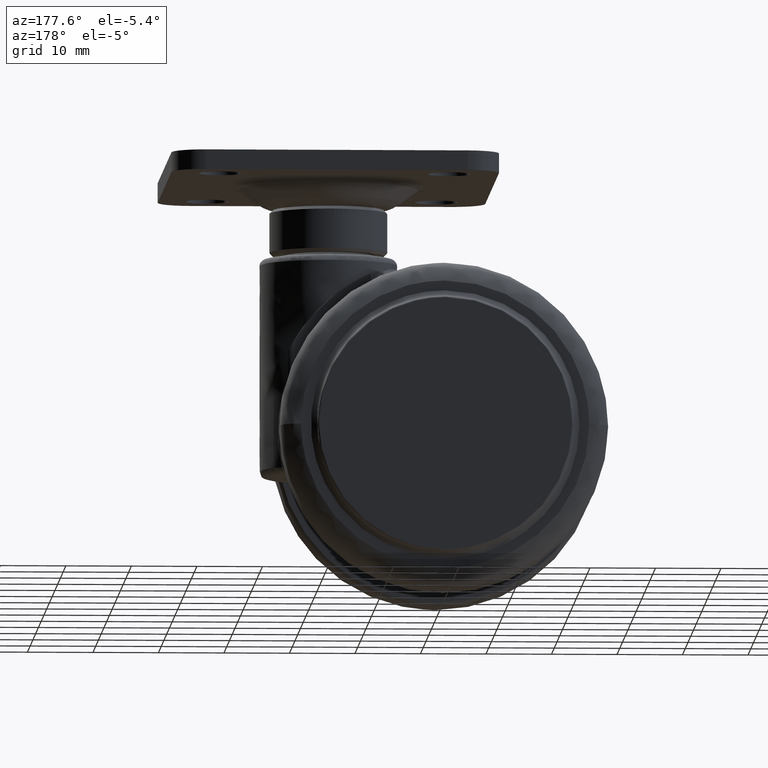
[diagram: clean part render]
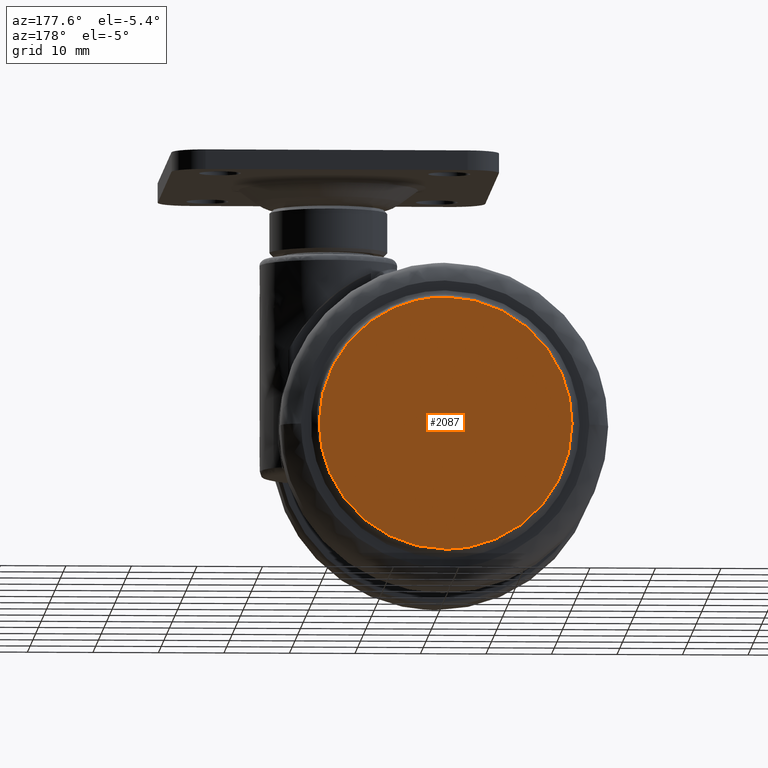
[diagram: same view with one face highlighted and labeled with its STEP entity id]
A machine part, auxiliary view. The second image highlights one B-rep face of the part: STEP entity #2087.
In plain terms, the highlighted face is a freeform B-spline surface patch.
Its self-contained STEP definition (entity closure, byte-faithful):
#1938=CARTESIAN_POINT('',(19.300000002142859,21.600000000000001,-1.770490E-015));
#1939=VERTEX_POINT('',#1938);
#1950=CARTESIAN_POINT('',(2.645150E-015,21.600000000000001,19.300000000000001));
#1951=VERTEX_POINT('',#1950);
#1952=CARTESIAN_POINT('',(19.300000002142859,21.600000000000001,-1.770490E-015));
#1953=CARTESIAN_POINT('',(19.300043013398479,21.600000000000009,0.986861867269874));
#1954=CARTESIAN_POINT('',(19.139230580329489,21.599999999999909,3.078997450559151));
#1955=CARTESIAN_POINT('',(18.397395424035331,21.600000000000179,6.119824491205345));
#1956=CARTESIAN_POINT('',(17.086794447475341,21.599999999999909,9.177189735657770));
#1957=CARTESIAN_POINT('',(15.314181115015440,21.599999999999891,11.901967077146400));
#1958=CARTESIAN_POINT('',(12.969323321247920,21.600000000000200,14.426108455988670));
#1959=CARTESIAN_POINT('',(10.502156717126940,21.599999999999749,16.291404775360640));
#1960=CARTESIAN_POINT('',(8.160886975439549,21.599999999999909,17.533414119398088));
#1961=CARTESIAN_POINT('',(6.103678724315310,21.599999999999870,18.348810069683729));
#1962=CARTESIAN_POINT('',(3.473674258377183,21.599999999999920,19.076724640466249));
#1963=CARTESIAN_POINT('',(1.342147378823382,21.600000000000460,19.300201470981431));
#1964=CARTESIAN_POINT('',(2.645150E-015,21.600000000000001,19.300000000000001));
#1965=B_SPLINE_CURVE_WITH_KNOTS('',3,(#1952,#1953,#1954,#1955,#1956,#1957,#1958,#1959,#1960,#1961,#1962,#1963,#1964),.UNSPECIFIED.,.F.,.U.,(4,1,1,1,1,1,1,1,1,1,4),(0.000000039194731,2.960586682228097,6.276445022185797,9.355465383033387,12.908170565230670,15.987158770702820,19.658287642481302,22.145192896709350,23.921553300927808,26.290023069667338,30.316416666741979),.UNSPECIFIED.);
#1966=EDGE_CURVE('',#1939,#1951,#1965,.T.);
#1968=CARTESIAN_POINT('',(-19.300000002142848,21.600000000000009,8.852452E-016));
#1969=VERTEX_POINT('',#1968);
#1970=CARTESIAN_POINT('',(2.645150E-015,21.600000000000001,19.300000000000001));
#1971=CARTESIAN_POINT('',(-1.263198148936484,21.599999999999930,19.300162421730320));
#1972=CARTESIAN_POINT('',(-3.157890991200961,21.600000000000080,19.113280457767718));
#1973=CARTESIAN_POINT('',(-5.879873487703384,21.599999999999909,18.431442689816720));
#1974=CARTESIAN_POINT('',(-7.838994652006916,21.600000000000069,17.682622912959811));
#1975=CARTESIAN_POINT('',(-9.978358701782545,21.599999999999898,16.572637861562772));
#1976=CARTESIAN_POINT('',(-12.207142608660600,21.599999999999920,15.063678983682189));
#1977=CARTESIAN_POINT('',(-14.331715219001330,21.599999999999980,13.040924368741980));
#1978=CARTESIAN_POINT('',(-15.876566277903560,21.600000000000129,11.035916853388199));
#1979=CARTESIAN_POINT('',(-16.954377804465839,21.599999999999621,9.286756965929078));
#1980=CARTESIAN_POINT('',(-17.873453564066079,21.600000000000009,7.403733468600493));
#1981=CARTESIAN_POINT('',(-18.678416607493251,21.600000000000261,5.087085318554824));
#1982=CARTESIAN_POINT('',(-19.187943158651880,21.599999999999071,2.565824417509019));
#1983=CARTESIAN_POINT('',(-19.300025331778642,21.600000000001870,0.828956541090417));
#1984=CARTESIAN_POINT('',(-19.300000002142848,21.600000000000009,8.852452E-016));
#1985=B_SPLINE_CURVE_WITH_KNOTS('',3,(#1970,#1971,#1972,#1973,#1974,#1975,#1976,#1977,#1978,#1979,#1980,#1981,#1982,#1983,#1984),.UNSPECIFIED.,.F.,.U.,(4,1,1,1,1,1,1,1,1,1,1,1,4),(0.000000039228329,3.789550321899313,5.684319618693884,8.408071021678087,10.066004655524880,12.908170565253419,16.460860765283371,18.829319353964081,20.487256004077249,22.618889028232751,25.105792696942419,27.829545265017810,30.316416666747141),.UNSPECIFIED.);
#1986=EDGE_CURVE('',#1951,#1969,#1985,.T.);
#2035=CARTESIAN_POINT('',(2.645150E-015,21.600000000000001,-19.300000000000001));
#2036=VERTEX_POINT('',#2035);
#2037=CARTESIAN_POINT('',(-19.300000002142848,21.600000000000009,8.852452E-016));
#2038=CARTESIAN_POINT('',(-19.300018221706100,21.600000000000030,-0.789481345794120));
#2039=CARTESIAN_POINT('',(-19.200570804776280,21.599999999999980,-2.407927906717174));
#2040=CARTESIAN_POINT('',(-18.810504646923832,21.599999999999952,-4.467806452140263));
#2041=CARTESIAN_POINT('',(-18.203833481910259,21.600000000000161,-6.512789966767113));
#2042=CARTESIAN_POINT('',(-17.257338658739709,21.599999999999952,-8.818132186608795));
#2043=CARTESIAN_POINT('',(-15.692640891324499,21.599999999999991,-11.392722188272669));
#2044=CARTESIAN_POINT('',(-13.824064415704740,21.600000000000019,-13.545385468639431));
#2045=CARTESIAN_POINT('',(-12.052156397448391,21.600000000000190,-15.121846131112051));
#2046=CARTESIAN_POINT('',(-10.410832575591540,21.599999999999831,-16.292914942718308));
#2047=CARTESIAN_POINT('',(-8.313219816140782,21.600000000000399,-17.481300936001489));
#2048=CARTESIAN_POINT('',(-5.925581383779868,21.599999999999952,-18.444619040538029));
#2049=CARTESIAN_POINT('',(-3.000035841078339,21.599999999999859,-19.139366804077461));
#2050=CARTESIAN_POINT('',(-1.065812179926299,21.600000000000279,-19.300072727258559));
#2051=CARTESIAN_POINT('',(2.645150E-015,21.600000000000001,-19.300000000000001));
#2052=B_SPLINE_CURVE_WITH_KNOTS('',3,(#2037,#2038,#2039,#2040,#2041,#2042,#2043,#2044,#2045,#2046,#2047,#2048,#2049,#2050,#2051),.UNSPECIFIED.,.F.,.U.,(4,1,1,1,1,1,1,1,1,1,1,1,4),(0.000000039187263,2.368447161487655,4.855351262749238,6.276445022181665,8.763339969380336,12.316066385750659,15.276606852846831,17.289819616312780,19.421450146482190,21.316224620700559,24.513666534689960,27.118984081670948,30.316416666741979),.UNSPECIFIED.);
#2053=EDGE_CURVE('',#1969,#2036,#2052,.T.);
#2055=CARTESIAN_POINT('',(2.645150E-015,21.600000000000001,-19.300000000000001));
#2056=CARTESIAN_POINT('',(1.263198848136977,21.600000000000058,-19.300177694497179));
#2057=CARTESIAN_POINT('',(3.039471313733373,21.599999999999930,-19.124952272717969));
#2058=CARTESIAN_POINT('',(5.881739420487403,21.600000000000179,-18.440781607382899));
#2059=CARTESIAN_POINT('',(8.287961111966515,21.599999999999511,-17.521083227876510));
#2060=CARTESIAN_POINT('',(10.788260995145190,21.600000000000851,-16.074038490761549));
#2061=CARTESIAN_POINT('',(12.601241413199389,21.599999999998658,-14.668065062814440));
#2062=CARTESIAN_POINT('',(14.222770771688589,21.600000000000829,-13.105160538348461));
#2063=CARTESIAN_POINT('',(15.714703308005641,21.599999999999429,-11.309880050259290));
#2064=CARTESIAN_POINT('',(16.945573539649398,21.599999999999810,-9.325883773080829));
#2065=CARTESIAN_POINT('',(18.060581529617700,21.600000000000222,-6.968545389350564));
#2066=CARTESIAN_POINT('',(19.015306248680510,21.599999999999991,-3.986834492404925));
#2067=CARTESIAN_POINT('',(19.300259038918739,21.599999999999660,-1.421089643579179));
#2068=CARTESIAN_POINT('',(19.300000002142859,21.600000000000001,-1.770490E-015));
#2069=B_SPLINE_CURVE_WITH_KNOTS('',3,(#2055,#2056,#2057,#2058,#2059,#2060,#2061,#2062,#2063,#2064,#2065,#2066,#2067,#2068),.UNSPECIFIED.,.F.,.U.,(4,1,1,1,1,1,1,1,1,1,1,4),(0.000000039230869,3.789550321900855,5.329048619721217,8.763339969410705,11.487097970233330,13.973999843531660,15.631896031477790,18.237213425426361,20.960953245709661,22.618889028232910,26.053185783741728,30.316416666747159),.UNSPECIFIED.);
#2070=EDGE_CURVE('',#2036,#1939,#2069,.T.);
#2076=CARTESIAN_POINT('',(21.228069927542641,21.600000000000001,-21.228069925185711));
#2077=CARTESIAN_POINT('',(21.228069927542641,21.600000000000001,21.228070960518391));
#2078=CARTESIAN_POINT('',(-21.228070962875311,21.600000000000009,-21.228069925185711));
#2079=CARTESIAN_POINT('',(-21.228070962875311,21.600000000000009,21.228070960518391));
#2080=B_SPLINE_SURFACE_WITH_KNOTS('',1,1,((#2076,#2078),(#2077,#2079)),.UNSPECIFIED.,.F.,.F.,.U.,(2,2),(2,2),(0.0,42.456140885704102),(0.0,42.456140890417963),.UNSPECIFIED.);
#2081=ORIENTED_EDGE('',*,*,#1966,.F.);
#2082=ORIENTED_EDGE('',*,*,#2070,.F.);
#2083=ORIENTED_EDGE('',*,*,#2053,.F.);
#2084=ORIENTED_EDGE('',*,*,#1986,.F.);
#2085=EDGE_LOOP('',(#2081,#2082,#2083,#2084));
#2086=FACE_OUTER_BOUND('',#2085,.T.);
#2087=ADVANCED_FACE('',(#2086),#2080,.F.);